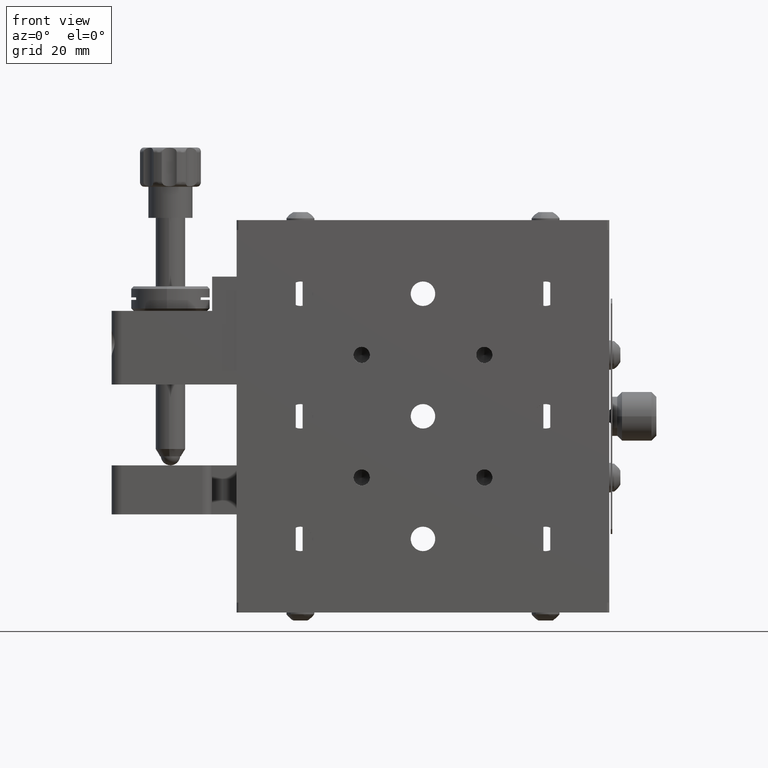
[diagram: clean part render]
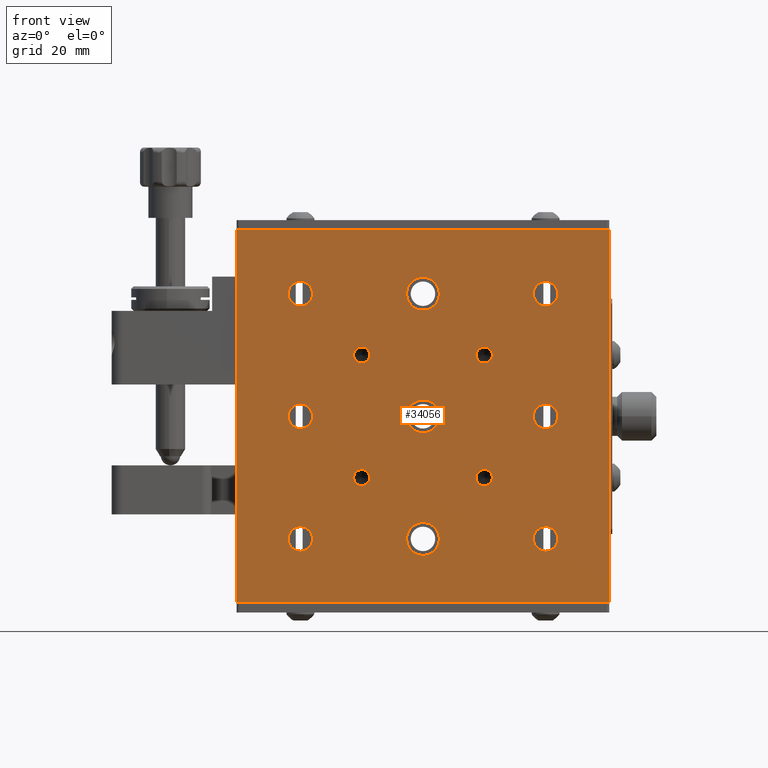
[diagram: same view with one face highlighted and labeled with its STEP entity id]
A machine part, front view. The second image highlights one B-rep face of the part: STEP entity #34056.
In plain terms, the highlighted planar face has unit normal (-0, 1, 0).
Its self-contained STEP definition (entity closure, byte-faithful):
#38 = AXIS2_PLACEMENT_3D ( 'NONE', #52420, #58179, #18343 ) ;
#92 = CARTESIAN_POINT ( 'NONE',  ( -3.294424172231802000, -10.89355778439073700, 138.6000000000000200 ) ) ;
#945 = VERTEX_POINT ( 'NONE', #23663 ) ;
#1326 = ORIENTED_EDGE ( 'NONE', *, *, #60558, .T. ) ;
#1643 = DIRECTION ( 'NONE',  ( -0.0000000000000000000, -1.000000000000000000, -0.0000000000000000000 ) ) ;
#1766 = DIRECTION ( 'NONE',  ( 0.0000000000000000000, 0.0000000000000000000, -1.000000000000000000 ) ) ;
#1831 = CARTESIAN_POINT ( 'NONE',  ( 25.05557582776819100, -10.89355778439081800, 111.1000000000000400 ) ) ;
#1974 = ORIENTED_EDGE ( 'NONE', *, *, #13996, .F. ) ;
#2398 = DIRECTION ( 'NONE',  ( 0.0000000000000000000, 0.0000000000000000000, -1.000000000000000000 ) ) ;
#3509 = ORIENTED_EDGE ( 'NONE', *, *, #13228, .F. ) ;
#3677 = CARTESIAN_POINT ( 'NONE',  ( -3.294424172231802000, -10.89355778439073700, 113.6000000000000400 ) ) ;
#3860 = EDGE_CURVE ( 'NONE', #54604, #73499, #8024, .T. ) ;
#4466 = AXIS2_PLACEMENT_3D ( 'NONE', #19199, #48290, #53257 ) ;
#5291 = EDGE_CURVE ( 'NONE', #42826, #27543, #72012, .T. ) ;
#5795 = CARTESIAN_POINT ( 'NONE',  ( 21.70557582776819300, -10.89355778439081800, 136.1000000000000200 ) ) ;
#6339 = AXIS2_PLACEMENT_3D ( 'NONE', #39973, #69391, #24071 ) ;
#6497 = LINE ( 'NONE', #32297, #64421 ) ;
#6731 = DIRECTION ( 'NONE',  ( -1.000000000000000000, 0.0000000000000000000, 0.0000000000000000000 ) ) ;
#6772 = CIRCLE ( 'NONE', #39556, 2.500000000000002200 ) ;
#7152 = CARTESIAN_POINT ( 'NONE',  ( -3.294424172231802400, -10.89355778439073700, 111.1000000000000400 ) ) ;
#7985 = AXIS2_PLACEMENT_3D ( 'NONE', #25100, #64923, #2398 ) ;
#8012 = DIRECTION ( 'NONE',  ( -0.0000000000000000000, -1.000000000000000000, -0.0000000000000000000 ) ) ;
#8024 = CIRCLE ( 'NONE', #4466, 1.649999999999998600 ) ;
#8220 = DIRECTION ( 'NONE',  ( 0.0000000000000000000, 0.0000000000000000000, -1.000000000000000000 ) ) ;
#8864 = DIRECTION ( 'NONE',  ( 0.0000000000000000000, 0.0000000000000000000, -1.000000000000000000 ) ) ;
#8967 = ORIENTED_EDGE ( 'NONE', *, *, #15612, .F. ) ;
#9105 = CARTESIAN_POINT ( 'NONE',  ( 46.70557582776820000, -10.89355778439090900, 108.6000000000000200 ) ) ;
#9332 = CIRCLE ( 'NONE', #6339, 1.649999999999998600 ) ;
#9341 = EDGE_LOOP ( 'NONE', ( #40611, #73124 ) ) ;
#9528 = EDGE_LOOP ( 'NONE', ( #12005, #61318 ) ) ;
#9541 = ORIENTED_EDGE ( 'NONE', *, *, #72242, .F. ) ;
#9678 = ORIENTED_EDGE ( 'NONE', *, *, #47055, .F. ) ;
#11080 = CARTESIAN_POINT ( 'NONE',  ( -16.29442417223180700, -10.89355778439082400, 149.1000000000000500 ) ) ;
#11842 = FACE_BOUND ( 'NONE', #9528, .T. ) ;
#12005 = ORIENTED_EDGE ( 'NONE', *, *, #35371, .F. ) ;
#12373 = CARTESIAN_POINT ( 'NONE',  ( 46.70557582776820000, -10.89355778439090900, 88.60000000000003700 ) ) ;
#12391 = VERTEX_POINT ( 'NONE', #26198 ) ;
#12502 = DIRECTION ( 'NONE',  ( 0.0000000000000000000, 0.0000000000000000000, -1.000000000000000000 ) ) ;
#13045 = VERTEX_POINT ( 'NONE', #23364 ) ;
#13078 = CARTESIAN_POINT ( 'NONE',  ( 34.20557582776820000, -10.89355778439086600, 123.6000000000000200 ) ) ;
#13228 = EDGE_CURVE ( 'NONE', #34052, #13045, #43273, .T. ) ;
#13270 = EDGE_CURVE ( 'NONE', #27204, #25026, #71824, .T. ) ;
#13322 = DIRECTION ( 'NONE',  ( 0.0000000000000000000, 0.0000000000000000000, -1.000000000000000000 ) ) ;
#13799 = CIRCLE ( 'NONE', #41524, 2.500000000000002200 ) ;
#13996 = EDGE_CURVE ( 'NONE', #45213, #70854, #9332, .T. ) ;
#14380 = CARTESIAN_POINT ( 'NONE',  ( -3.294424172231794800, -10.89355778439073700, 88.60000000000002300 ) ) ;
#14586 = FACE_BOUND ( 'NONE', #19443, .T. ) ;
#14635 = EDGE_CURVE ( 'NONE', #62261, #53956, #35983, .T. ) ;
#14766 = AXIS2_PLACEMENT_3D ( 'NONE', #26241, #66040, #31942 ) ;
#15418 = CIRCLE ( 'NONE', #38, 2.500000000000002200 ) ;
#15503 = DIRECTION ( 'NONE',  ( -1.224606353822377300E-016, 1.000000000000000000, 0.0000000000000000000 ) ) ;
#15612 = EDGE_CURVE ( 'NONE', #48874, #66091, #49091, .T. ) ;
#15744 = DIRECTION ( 'NONE',  ( -0.0000000000000000000, -1.000000000000000000, -0.0000000000000000000 ) ) ;
#15827 = CARTESIAN_POINT ( 'NONE',  ( 46.70557582776820000, -10.89355778439090900, 86.10000000000003700 ) ) ;
#15881 = CARTESIAN_POINT ( 'NONE',  ( 9.205575827768194900, -10.89355778439077900, 121.9500000000000300 ) ) ;
#16098 = CIRCLE ( 'NONE', #45220, 3.349999999999998800 ) ;
#16127 = CIRCLE ( 'NONE', #46705, 2.500000000000002200 ) ;
#16373 = EDGE_CURVE ( 'NONE', #42577, #20670, #33828, .T. ) ;
#17618 = EDGE_CURVE ( 'NONE', #13045, #34052, #47513, .T. ) ;
#17736 = CARTESIAN_POINT ( 'NONE',  ( 34.20557582776820000, -10.89355778439086600, 125.2500000000000300 ) ) ;
#18343 = DIRECTION ( 'NONE',  ( 0.0000000000000000000, 0.0000000000000000000, -1.000000000000000000 ) ) ;
#18451 = CARTESIAN_POINT ( 'NONE',  ( -3.294424172231795300, -10.89355778439073700, 86.10000000000002300 ) ) ;
#18623 = AXIS2_PLACEMENT_3D ( 'NONE', #15827, #67834, #73305 ) ;
#18650 = PLANE ( 'NONE',  #21079 ) ;
#18797 = DIRECTION ( 'NONE',  ( -0.0000000000000000000, -1.000000000000000000, -0.0000000000000000000 ) ) ;
#18849 = VECTOR ( 'NONE', #49139, 1000.000000000000000 ) ;
#19087 = AXIS2_PLACEMENT_3D ( 'NONE', #60239, #20912, #71701 ) ;
#19199 = CARTESIAN_POINT ( 'NONE',  ( 34.20557582776819300, -10.89355778439086600, 98.60000000000003700 ) ) ;
#19304 = DIRECTION ( 'NONE',  ( -0.0000000000000000000, -1.000000000000000000, -0.0000000000000000000 ) ) ;
#19443 = EDGE_LOOP ( 'NONE', ( #71644, #27496 ) ) ;
#19593 = ORIENTED_EDGE ( 'NONE', *, *, #56419, .F. ) ;
#19659 = EDGE_CURVE ( 'NONE', #54224, #945, #16127, .T. ) ;
#19761 = ORIENTED_EDGE ( 'NONE', *, *, #60250, .F. ) ;
#19843 = AXIS2_PLACEMENT_3D ( 'NONE', #24191, #45834, #6731 ) ;
#20641 = CIRCLE ( 'NONE', #69246, 1.649999999999998600 ) ;
#20670 = VERTEX_POINT ( 'NONE', #55529 ) ;
#20824 = FACE_BOUND ( 'NONE', #46612, .T. ) ;
#20912 = DIRECTION ( 'NONE',  ( -1.224606353822377300E-016, 1.000000000000000000, 0.0000000000000000000 ) ) ;
#21079 = AXIS2_PLACEMENT_3D ( 'NONE', #30332, #58747, #69703 ) ;
#22308 = DIRECTION ( 'NONE',  ( -1.224606353822377300E-016, 1.000000000000000000, 0.0000000000000000000 ) ) ;
#22365 = DIRECTION ( 'NONE',  ( -0.0000000000000000000, -1.000000000000000000, -0.0000000000000000000 ) ) ;
#22386 = CIRCLE ( 'NONE', #40085, 3.349999999999998800 ) ;
#22445 = DIRECTION ( 'NONE',  ( 0.0000000000000000000, 0.0000000000000000000, -1.000000000000000000 ) ) ;
#22804 = DIRECTION ( 'NONE',  ( -1.000000000000000000, 0.0000000000000000000, 0.0000000000000000000 ) ) ;
#22857 = CARTESIAN_POINT ( 'NONE',  ( 34.20557582776819300, -10.89355778439086600, 98.60000000000003700 ) ) ;
#23364 = CARTESIAN_POINT ( 'NONE',  ( 46.70557582776819300, -10.89355778439090900, 133.6000000000000200 ) ) ;
#23580 = ORIENTED_EDGE ( 'NONE', *, *, #13270, .T. ) ;
#23594 = ORIENTED_EDGE ( 'NONE', *, *, #3860, .F. ) ;
#23663 = CARTESIAN_POINT ( 'NONE',  ( 46.70557582776820000, -10.89355778439090900, 113.6000000000000400 ) ) ;
#24071 = DIRECTION ( 'NONE',  ( 0.0000000000000000000, 0.0000000000000000000, -1.000000000000000000 ) ) ;
#24191 = CARTESIAN_POINT ( 'NONE',  ( 21.70557582776819300, -10.89355778439081800, 136.1000000000000200 ) ) ;
#24378 = FACE_BOUND ( 'NONE', #63873, .T. ) ;
#24500 = VERTEX_POINT ( 'NONE', #92 ) ;
#24512 = EDGE_CURVE ( 'NONE', #25026, #27204, #22386, .T. ) ;
#25026 = VERTEX_POINT ( 'NONE', #31489 ) ;
#25100 = CARTESIAN_POINT ( 'NONE',  ( 46.70557582776819300, -10.89355778439090900, 136.1000000000000200 ) ) ;
#25149 = ORIENTED_EDGE ( 'NONE', *, *, #17618, .F. ) ;
#25626 = ORIENTED_EDGE ( 'NONE', *, *, #50601, .T. ) ;
#25716 = ORIENTED_EDGE ( 'NONE', *, *, #44939, .F. ) ;
#25798 = ORIENTED_EDGE ( 'NONE', *, *, #24512, .T. ) ;
#25976 = AXIS2_PLACEMENT_3D ( 'NONE', #22857, #22365, #39273 ) ;
#26198 = CARTESIAN_POINT ( 'NONE',  ( -16.29442417223180700, -10.89355778439082400, 73.10000000000002300 ) ) ;
#26241 = CARTESIAN_POINT ( 'NONE',  ( 21.70557582776819300, -10.89355778439081800, 86.10000000000003700 ) ) ;
#26313 = CARTESIAN_POINT ( 'NONE',  ( 59.70557582776819300, -10.89355778439081500, 149.1000000000000500 ) ) ;
#26700 = EDGE_LOOP ( 'NONE', ( #50464, #55786 ) ) ;
#26755 = CIRCLE ( 'NONE', #25976, 1.649999999999998600 ) ;
#27204 = VERTEX_POINT ( 'NONE', #1831 ) ;
#27496 = ORIENTED_EDGE ( 'NONE', *, *, #44812, .F. ) ;
#27543 = VERTEX_POINT ( 'NONE', #28418 ) ;
#27715 = VECTOR ( 'NONE', #41763, 1000.000000000000000 ) ;
#27928 = ORIENTED_EDGE ( 'NONE', *, *, #44592, .T. ) ;
#28418 = CARTESIAN_POINT ( 'NONE',  ( -3.294424172231802400, -10.89355778439073700, 108.6000000000000200 ) ) ;
#28986 = DIRECTION ( 'NONE',  ( -1.224606353822377300E-016, 1.000000000000000000, 0.0000000000000000000 ) ) ;
#29066 = ORIENTED_EDGE ( 'NONE', *, *, #16373, .F. ) ;
#29111 = DIRECTION ( 'NONE',  ( -0.0000000000000000000, -1.000000000000000000, -0.0000000000000000000 ) ) ;
#30332 = CARTESIAN_POINT ( 'NONE',  ( -16.29442417223180700, -10.89355778439082400, 149.1000000000000500 ) ) ;
#30629 = VERTEX_POINT ( 'NONE', #32491 ) ;
#31292 = DIRECTION ( 'NONE',  ( 1.000000000000000000, 1.224606353822377300E-016, 0.0000000000000000000 ) ) ;
#31355 = EDGE_CURVE ( 'NONE', #41415, #48874, #49148, .T. ) ;
#31489 = CARTESIAN_POINT ( 'NONE',  ( 18.35557582776819200, -10.89355778439081800, 111.1000000000000400 ) ) ;
#31553 = CARTESIAN_POINT ( 'NONE',  ( 9.205575827768194900, -10.89355778439077900, 98.60000000000003700 ) ) ;
#31942 = DIRECTION ( 'NONE',  ( -1.000000000000000000, 0.0000000000000000000, 0.0000000000000000000 ) ) ;
#32297 = CARTESIAN_POINT ( 'NONE',  ( -16.29442417223180700, -10.89355778439082400, 149.1000000000000500 ) ) ;
#32391 = AXIS2_PLACEMENT_3D ( 'NONE', #64122, #18797, #52399 ) ;
#32491 = CARTESIAN_POINT ( 'NONE',  ( -3.294424172231802400, -10.89355778439073700, 133.6000000000000200 ) ) ;
#32521 = AXIS2_PLACEMENT_3D ( 'NONE', #61528, #15744, #22445 ) ;
#32565 = LINE ( 'NONE', #36274, #72635 ) ;
#32624 = EDGE_CURVE ( 'NONE', #65933, #61009, #49004, .T. ) ;
#32816 = EDGE_CURVE ( 'NONE', #69358, #48050, #68558, .T. ) ;
#32890 = CARTESIAN_POINT ( 'NONE',  ( 9.205575827768194900, -10.89355778439077900, 100.2500000000000300 ) ) ;
#33118 = CARTESIAN_POINT ( 'NONE',  ( -3.294424172231795300, -10.89355778439073700, 86.10000000000002300 ) ) ;
#33828 = CIRCLE ( 'NONE', #44614, 2.500000000000002200 ) ;
#34043 = EDGE_LOOP ( 'NONE', ( #25798, #23580 ) ) ;
#34052 = VERTEX_POINT ( 'NONE', #40780 ) ;
#34056 = ADVANCED_FACE ( 'NONE', ( #60863, #46623, #66222, #35917, #51047, #43919, #11842, #70664, #20824, #62640, #24378, #14586, #45681, #55499 ), #18650, .F. ) ;
#35371 = EDGE_CURVE ( 'NONE', #57802, #66944, #20641, .T. ) ;
#35668 = CIRCLE ( 'NONE', #14766, 3.349999999999998800 ) ;
#35742 = ORIENTED_EDGE ( 'NONE', *, *, #72427, .F. ) ;
#35762 = DIRECTION ( 'NONE',  ( 0.0000000000000000000, 0.0000000000000000000, -1.000000000000000000 ) ) ;
#35789 = DIRECTION ( 'NONE',  ( 0.0000000000000000000, 0.0000000000000000000, -1.000000000000000000 ) ) ;
#35917 = FACE_BOUND ( 'NONE', #69773, .T. ) ;
#35983 = CIRCLE ( 'NONE', #73626, 2.500000000000002200 ) ;
#36274 = CARTESIAN_POINT ( 'NONE',  ( -16.29442417223180700, -10.89355778439082400, 73.10000000000002300 ) ) ;
#36373 = CARTESIAN_POINT ( 'NONE',  ( 34.20557582776819300, -10.89355778439086600, 96.95000000000003100 ) ) ;
#36512 = CARTESIAN_POINT ( 'NONE',  ( 46.70557582776819300, -10.89355778439090900, 136.1000000000000200 ) ) ;
#36850 = CARTESIAN_POINT ( 'NONE',  ( 25.05557582776819100, -10.89355778439081800, 86.10000000000003700 ) ) ;
#37417 = DIRECTION ( 'NONE',  ( -1.000000000000000000, 0.0000000000000000000, 0.0000000000000000000 ) ) ;
#37489 = DIRECTION ( 'NONE',  ( 0.0000000000000000000, 0.0000000000000000000, -1.000000000000000000 ) ) ;
#38847 = DIRECTION ( 'NONE',  ( 0.0000000000000000000, 0.0000000000000000000, -1.000000000000000000 ) ) ;
#39151 = DIRECTION ( 'NONE',  ( 0.0000000000000000000, 0.0000000000000000000, -1.000000000000000000 ) ) ;
#39273 = DIRECTION ( 'NONE',  ( 0.0000000000000000000, 0.0000000000000000000, -1.000000000000000000 ) ) ;
#39486 = CARTESIAN_POINT ( 'NONE',  ( 9.205575827768194900, -10.89355778439077900, 96.95000000000003100 ) ) ;
#39556 = AXIS2_PLACEMENT_3D ( 'NONE', #73427, #45042, #38847 ) ;
#39973 = CARTESIAN_POINT ( 'NONE',  ( 9.205575827768194900, -10.89355778439077900, 123.6000000000000200 ) ) ;
#40085 = AXIS2_PLACEMENT_3D ( 'NONE', #51171, #22308, #22804 ) ;
#40112 = CARTESIAN_POINT ( 'NONE',  ( 25.05557582776819100, -10.89355778439081800, 136.1000000000000200 ) ) ;
#40611 = ORIENTED_EDGE ( 'NONE', *, *, #61031, .T. ) ;
#40780 = CARTESIAN_POINT ( 'NONE',  ( 46.70557582776819300, -10.89355778439090900, 138.6000000000000200 ) ) ;
#41384 = EDGE_LOOP ( 'NONE', ( #25626, #1326 ) ) ;
#41415 = VERTEX_POINT ( 'NONE', #11080 ) ;
#41524 = AXIS2_PLACEMENT_3D ( 'NONE', #18451, #64261, #8220 ) ;
#41763 = DIRECTION ( 'NONE',  ( -0.0000000000000000000, -0.0000000000000000000, -1.000000000000000000 ) ) ;
#42027 = CIRCLE ( 'NONE', #19843, 3.349999999999998800 ) ;
#42425 = AXIS2_PLACEMENT_3D ( 'NONE', #65086, #53902, #71062 ) ;
#42459 = ORIENTED_EDGE ( 'NONE', *, *, #31355, .F. ) ;
#42502 = CARTESIAN_POINT ( 'NONE',  ( 46.70557582776820000, -10.89355778439090900, 111.1000000000000400 ) ) ;
#42577 = VERTEX_POINT ( 'NONE', #14380 ) ;
#42826 = VERTEX_POINT ( 'NONE', #3677 ) ;
#43161 = ORIENTED_EDGE ( 'NONE', *, *, #19659, .F. ) ;
#43273 = CIRCLE ( 'NONE', #43555, 2.500000000000002200 ) ;
#43555 = AXIS2_PLACEMENT_3D ( 'NONE', #36512, #59936, #8864 ) ;
#43919 = FACE_BOUND ( 'NONE', #57271, .T. ) ;
#44589 = CARTESIAN_POINT ( 'NONE',  ( 46.70557582776820000, -10.89355778439090900, 83.60000000000003700 ) ) ;
#44592 = EDGE_CURVE ( 'NONE', #12391, #66091, #32565, .T. ) ;
#44614 = AXIS2_PLACEMENT_3D ( 'NONE', #33118, #65278, #72939 ) ;
#44812 = EDGE_CURVE ( 'NONE', #53956, #62261, #45884, .T. ) ;
#44939 = EDGE_CURVE ( 'NONE', #20670, #42577, #13799, .T. ) ;
#45042 = DIRECTION ( 'NONE',  ( -0.0000000000000000000, -1.000000000000000000, -0.0000000000000000000 ) ) ;
#45213 = VERTEX_POINT ( 'NONE', #67428 ) ;
#45220 = AXIS2_PLACEMENT_3D ( 'NONE', #5795, #28986, #45891 ) ;
#45536 = VERTEX_POINT ( 'NONE', #63167 ) ;
#45681 = FACE_BOUND ( 'NONE', #46741, .T. ) ;
#45723 = EDGE_LOOP ( 'NONE', ( #27928, #8967, #42459, #47184 ) ) ;
#45834 = DIRECTION ( 'NONE',  ( -1.224606353822377300E-016, 1.000000000000000000, 0.0000000000000000000 ) ) ;
#45884 = CIRCLE ( 'NONE', #18623, 2.500000000000002200 ) ;
#45891 = DIRECTION ( 'NONE',  ( -1.000000000000000000, 0.0000000000000000000, 0.0000000000000000000 ) ) ;
#46349 = CARTESIAN_POINT ( 'NONE',  ( -3.294424172231802400, -10.89355778439073700, 136.1000000000000200 ) ) ;
#46456 = EDGE_CURVE ( 'NONE', #945, #54224, #15418, .T. ) ;
#46612 = EDGE_LOOP ( 'NONE', ( #35742, #9678 ) ) ;
#46622 = ORIENTED_EDGE ( 'NONE', *, *, #46456, .F. ) ;
#46623 = FACE_BOUND ( 'NONE', #9341, .T. ) ;
#46705 = AXIS2_PLACEMENT_3D ( 'NONE', #42502, #1643, #35762 ) ;
#46741 = EDGE_LOOP ( 'NONE', ( #43161, #46622 ) ) ;
#47055 = EDGE_CURVE ( 'NONE', #24500, #30629, #65561, .T. ) ;
#47184 = ORIENTED_EDGE ( 'NONE', *, *, #49748, .T. ) ;
#47378 = AXIS2_PLACEMENT_3D ( 'NONE', #71559, #15503, #37417 ) ;
#47513 = CIRCLE ( 'NONE', #7985, 2.500000000000002200 ) ;
#48000 = CARTESIAN_POINT ( 'NONE',  ( 59.70557582776819300, -10.89355778439081500, 149.1000000000000500 ) ) ;
#48006 = CIRCLE ( 'NONE', #32521, 1.649999999999998600 ) ;
#48050 = VERTEX_POINT ( 'NONE', #72014 ) ;
#48290 = DIRECTION ( 'NONE',  ( -0.0000000000000000000, -1.000000000000000000, -0.0000000000000000000 ) ) ;
#48874 = VERTEX_POINT ( 'NONE', #26313 ) ;
#49004 = CIRCLE ( 'NONE', #32391, 1.649999999999998600 ) ;
#49091 = LINE ( 'NONE', #48000, #27715 ) ;
#49093 = AXIS2_PLACEMENT_3D ( 'NONE', #31553, #55404, #37489 ) ;
#49133 = CIRCLE ( 'NONE', #49093, 1.649999999999998600 ) ;
#49139 = DIRECTION ( 'NONE',  ( 1.000000000000000000, 1.224606353822377300E-016, 0.0000000000000000000 ) ) ;
#49148 = LINE ( 'NONE', #72768, #18849 ) ;
#49641 = EDGE_LOOP ( 'NONE', ( #61862, #19761 ) ) ;
#49748 = EDGE_CURVE ( 'NONE', #41415, #12391, #6497, .T. ) ;
#50154 = DIRECTION ( 'NONE',  ( -0.0000000000000000000, -1.000000000000000000, -0.0000000000000000000 ) ) ;
#50234 = CARTESIAN_POINT ( 'NONE',  ( 59.70557582776819300, -10.89355778439081500, 73.10000000000002300 ) ) ;
#50398 = AXIS2_PLACEMENT_3D ( 'NONE', #67547, #50154, #39151 ) ;
#50464 = ORIENTED_EDGE ( 'NONE', *, *, #68310, .F. ) ;
#50601 = EDGE_CURVE ( 'NONE', #45536, #73170, #42027, .T. ) ;
#51047 = FACE_BOUND ( 'NONE', #49641, .T. ) ;
#51171 = CARTESIAN_POINT ( 'NONE',  ( 21.70557582776819300, -10.89355778439081800, 111.1000000000000400 ) ) ;
#52114 = AXIS2_PLACEMENT_3D ( 'NONE', #46349, #57584, #12502 ) ;
#52399 = DIRECTION ( 'NONE',  ( 0.0000000000000000000, 0.0000000000000000000, -1.000000000000000000 ) ) ;
#52420 = CARTESIAN_POINT ( 'NONE',  ( 46.70557582776820000, -10.89355778439090900, 111.1000000000000400 ) ) ;
#53257 = DIRECTION ( 'NONE',  ( 0.0000000000000000000, 0.0000000000000000000, -1.000000000000000000 ) ) ;
#53902 = DIRECTION ( 'NONE',  ( -0.0000000000000000000, -1.000000000000000000, -0.0000000000000000000 ) ) ;
#53956 = VERTEX_POINT ( 'NONE', #12373 ) ;
#54224 = VERTEX_POINT ( 'NONE', #9105 ) ;
#54604 = VERTEX_POINT ( 'NONE', #68825 ) ;
#55187 = DIRECTION ( 'NONE',  ( -0.0000000000000000000, -0.0000000000000000000, -1.000000000000000000 ) ) ;
#55404 = DIRECTION ( 'NONE',  ( -0.0000000000000000000, -1.000000000000000000, -0.0000000000000000000 ) ) ;
#55499 = FACE_OUTER_BOUND ( 'NONE', #45723, .T. ) ;
#55529 = CARTESIAN_POINT ( 'NONE',  ( -3.294424172231795300, -10.89355778439073700, 83.60000000000002300 ) ) ;
#55786 = ORIENTED_EDGE ( 'NONE', *, *, #5291, .F. ) ;
#56076 = AXIS2_PLACEMENT_3D ( 'NONE', #7152, #29111, #35789 ) ;
#56419 = EDGE_CURVE ( 'NONE', #73499, #54604, #26755, .T. ) ;
#57271 = EDGE_LOOP ( 'NONE', ( #19593, #23594 ) ) ;
#57584 = DIRECTION ( 'NONE',  ( -0.0000000000000000000, -1.000000000000000000, -0.0000000000000000000 ) ) ;
#57802 = VERTEX_POINT ( 'NONE', #69274 ) ;
#58179 = DIRECTION ( 'NONE',  ( -0.0000000000000000000, -1.000000000000000000, -0.0000000000000000000 ) ) ;
#58747 = DIRECTION ( 'NONE',  ( -1.224606353822377300E-016, 1.000000000000000000, 0.0000000000000000000 ) ) ;
#59936 = DIRECTION ( 'NONE',  ( -0.0000000000000000000, -1.000000000000000000, -0.0000000000000000000 ) ) ;
#60239 = CARTESIAN_POINT ( 'NONE',  ( 21.70557582776819300, -10.89355778439081800, 86.10000000000003700 ) ) ;
#60250 = EDGE_CURVE ( 'NONE', #61009, #65933, #49133, .T. ) ;
#60558 = EDGE_CURVE ( 'NONE', #73170, #45536, #16098, .T. ) ;
#60863 = FACE_BOUND ( 'NONE', #41384, .T. ) ;
#61009 = VERTEX_POINT ( 'NONE', #32890 ) ;
#61031 = EDGE_CURVE ( 'NONE', #48050, #69358, #35668, .T. ) ;
#61318 = ORIENTED_EDGE ( 'NONE', *, *, #63231, .F. ) ;
#61528 = CARTESIAN_POINT ( 'NONE',  ( 34.20557582776820000, -10.89355778439086600, 123.6000000000000200 ) ) ;
#61862 = ORIENTED_EDGE ( 'NONE', *, *, #32624, .F. ) ;
#62261 = VERTEX_POINT ( 'NONE', #44589 ) ;
#62640 = FACE_BOUND ( 'NONE', #26700, .T. ) ;
#63167 = CARTESIAN_POINT ( 'NONE',  ( 18.35557582776819200, -10.89355778439081800, 136.1000000000000200 ) ) ;
#63231 = EDGE_CURVE ( 'NONE', #66944, #57802, #48006, .T. ) ;
#63873 = EDGE_LOOP ( 'NONE', ( #25716, #29066 ) ) ;
#64122 = CARTESIAN_POINT ( 'NONE',  ( 9.205575827768194900, -10.89355778439077900, 98.60000000000003700 ) ) ;
#64261 = DIRECTION ( 'NONE',  ( -0.0000000000000000000, -1.000000000000000000, -0.0000000000000000000 ) ) ;
#64421 = VECTOR ( 'NONE', #55187, 1000.000000000000000 ) ;
#64923 = DIRECTION ( 'NONE',  ( -0.0000000000000000000, -1.000000000000000000, -0.0000000000000000000 ) ) ;
#65086 = CARTESIAN_POINT ( 'NONE',  ( 9.205575827768194900, -10.89355778439077900, 123.6000000000000200 ) ) ;
#65278 = DIRECTION ( 'NONE',  ( -0.0000000000000000000, -1.000000000000000000, -0.0000000000000000000 ) ) ;
#65561 = CIRCLE ( 'NONE', #52114, 2.500000000000002200 ) ;
#65933 = VERTEX_POINT ( 'NONE', #39486 ) ;
#66040 = DIRECTION ( 'NONE',  ( -1.224606353822377300E-016, 1.000000000000000000, 0.0000000000000000000 ) ) ;
#66091 = VERTEX_POINT ( 'NONE', #50234 ) ;
#66222 = FACE_BOUND ( 'NONE', #34043, .T. ) ;
#66944 = VERTEX_POINT ( 'NONE', #17736 ) ;
#67428 = CARTESIAN_POINT ( 'NONE',  ( 9.205575827768194900, -10.89355778439077900, 125.2500000000000300 ) ) ;
#67547 = CARTESIAN_POINT ( 'NONE',  ( -3.294424172231802400, -10.89355778439073700, 111.1000000000000400 ) ) ;
#67834 = DIRECTION ( 'NONE',  ( -0.0000000000000000000, -1.000000000000000000, -0.0000000000000000000 ) ) ;
#68301 = CIRCLE ( 'NONE', #42425, 1.649999999999998600 ) ;
#68310 = EDGE_CURVE ( 'NONE', #27543, #42826, #72380, .T. ) ;
#68558 = CIRCLE ( 'NONE', #19087, 3.349999999999998800 ) ;
#68825 = CARTESIAN_POINT ( 'NONE',  ( 34.20557582776819300, -10.89355778439086600, 100.2500000000000300 ) ) ;
#69246 = AXIS2_PLACEMENT_3D ( 'NONE', #13078, #19304, #13322 ) ;
#69274 = CARTESIAN_POINT ( 'NONE',  ( 34.20557582776820000, -10.89355778439086600, 121.9500000000000300 ) ) ;
#69358 = VERTEX_POINT ( 'NONE', #36850 ) ;
#69391 = DIRECTION ( 'NONE',  ( -0.0000000000000000000, -1.000000000000000000, -0.0000000000000000000 ) ) ;
#69703 = DIRECTION ( 'NONE',  ( -1.000000000000000000, -1.224606353822377300E-016, 0.0000000000000000000 ) ) ;
#69773 = EDGE_LOOP ( 'NONE', ( #9541, #1974 ) ) ;
#70528 = CARTESIAN_POINT ( 'NONE',  ( 46.70557582776820000, -10.89355778439090900, 86.10000000000003700 ) ) ;
#70664 = FACE_BOUND ( 'NONE', #72091, .T. ) ;
#70854 = VERTEX_POINT ( 'NONE', #15881 ) ;
#71062 = DIRECTION ( 'NONE',  ( 0.0000000000000000000, 0.0000000000000000000, -1.000000000000000000 ) ) ;
#71559 = CARTESIAN_POINT ( 'NONE',  ( 21.70557582776819300, -10.89355778439081800, 111.1000000000000400 ) ) ;
#71644 = ORIENTED_EDGE ( 'NONE', *, *, #14635, .F. ) ;
#71701 = DIRECTION ( 'NONE',  ( -1.000000000000000000, 0.0000000000000000000, 0.0000000000000000000 ) ) ;
#71824 = CIRCLE ( 'NONE', #47378, 3.349999999999998800 ) ;
#72012 = CIRCLE ( 'NONE', #56076, 2.500000000000002200 ) ;
#72014 = CARTESIAN_POINT ( 'NONE',  ( 18.35557582776819200, -10.89355778439081800, 86.10000000000003700 ) ) ;
#72091 = EDGE_LOOP ( 'NONE', ( #25149, #3509 ) ) ;
#72242 = EDGE_CURVE ( 'NONE', #70854, #45213, #68301, .T. ) ;
#72380 = CIRCLE ( 'NONE', #50398, 2.500000000000002200 ) ;
#72427 = EDGE_CURVE ( 'NONE', #30629, #24500, #6772, .T. ) ;
#72635 = VECTOR ( 'NONE', #31292, 1000.000000000000000 ) ;
#72768 = CARTESIAN_POINT ( 'NONE',  ( -16.29442417223180700, -10.89355778439082400, 149.1000000000000500 ) ) ;
#72939 = DIRECTION ( 'NONE',  ( 0.0000000000000000000, 0.0000000000000000000, -1.000000000000000000 ) ) ;
#73124 = ORIENTED_EDGE ( 'NONE', *, *, #32816, .T. ) ;
#73170 = VERTEX_POINT ( 'NONE', #40112 ) ;
#73305 = DIRECTION ( 'NONE',  ( 0.0000000000000000000, 0.0000000000000000000, -1.000000000000000000 ) ) ;
#73427 = CARTESIAN_POINT ( 'NONE',  ( -3.294424172231802400, -10.89355778439073700, 136.1000000000000200 ) ) ;
#73499 = VERTEX_POINT ( 'NONE', #36373 ) ;
#73626 = AXIS2_PLACEMENT_3D ( 'NONE', #70528, #8012, #1766 ) ;